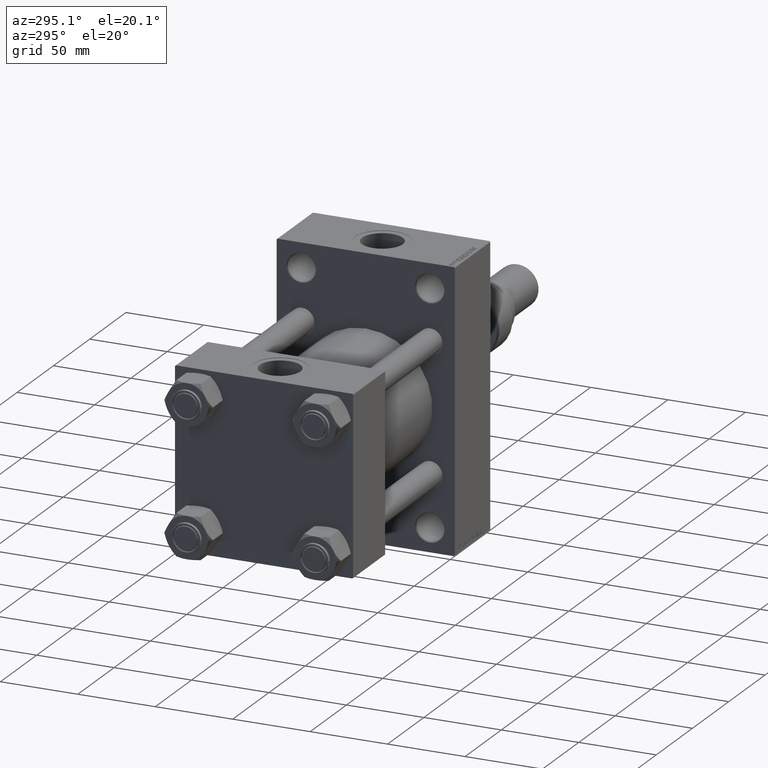
[diagram: clean part render]
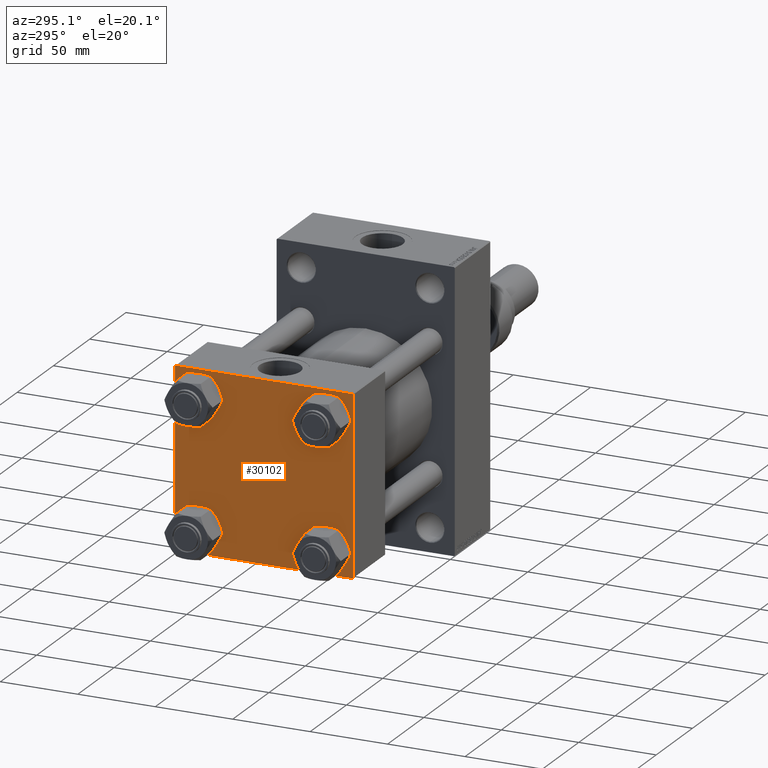
[diagram: same view with one face highlighted and labeled with its STEP entity id]
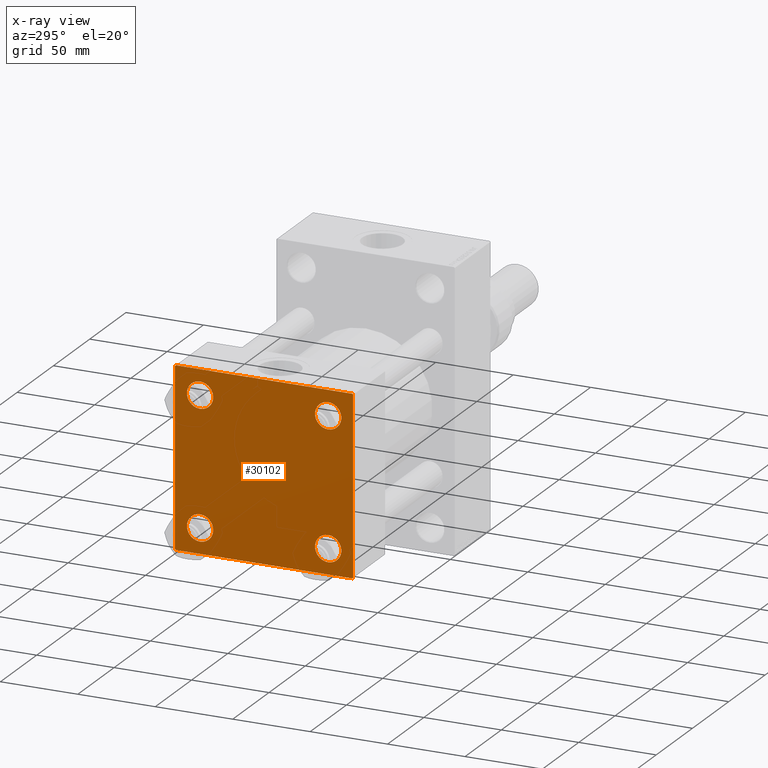
[diagram: x-ray of the same camera — body ghosted, the highlighted face saturated]
A machine part, auxiliary view. The second image highlights one B-rep face of the part: STEP entity #30102.
The next image is the same camera in x-ray: the body ghosted, the highlighted face saturated — about 0% of this face is hidden behind the body in this view.
In plain terms, the highlighted planar face has unit normal (-1, 0, 0).
Its self-contained STEP definition (entity closure, byte-faithful):
#4 = CIRCLE ( 'NONE', #14700, 8.499999999999992895 ) ;
#1008 = ORIENTED_EDGE ( 'NONE', *, *, #20594, .T. ) ;
#1101 = DIRECTION ( 'NONE',  ( 0.000000000000000000, 0.000000000000000000, 1.000000000000000000 ) ) ;
#1162 = VERTEX_POINT ( 'NONE', #33977 ) ;
#1301 = LINE ( 'NONE', #13311, #14352 ) ;
#1791 = DIRECTION ( 'NONE',  ( 1.000000000000000000, -0.000000000000000000, 0.000000000000000000 ) ) ;
#1833 = ORIENTED_EDGE ( 'NONE', *, *, #26661, .T. ) ;
#1867 = VERTEX_POINT ( 'NONE', #28967 ) ;
#2050 = DIRECTION ( 'NONE',  ( 0.000000000000000000, 0.000000000000000000, 1.000000000000000000 ) ) ;
#2169 = DIRECTION ( 'NONE',  ( -0.000000000000000000, 0.7071067811865376918, 0.7071067811865573427 ) ) ;
#2222 = CIRCLE ( 'NONE', #13684, 8.499999999999992895 ) ;
#2226 = VERTEX_POINT ( 'NONE', #2322 ) ;
#2320 = CIRCLE ( 'NONE', #30077, 8.499999999999992895 ) ;
#2322 = CARTESIAN_POINT ( 'NONE',  ( 0.000000000000000000, 57.00000000000000711, 57.50000000000000711 ) ) ;
#2478 = EDGE_CURVE ( 'NONE', #45137, #32740, #28827, .T. ) ;
#2998 = EDGE_CURVE ( 'NONE', #1867, #19682, #9231, .T. ) ;
#3012 = CARTESIAN_POINT ( 'NONE',  ( 0.000000000000000000, -41.34999999999998721, 49.85000000000000853 ) ) ;
#3251 = AXIS2_PLACEMENT_3D ( 'NONE', #35713, #8122, #39802 ) ;
#3537 = DIRECTION ( 'NONE',  ( 0.000000000000000000, 0.000000000000000000, 1.000000000000000000 ) ) ;
#3620 = CARTESIAN_POINT ( 'NONE',  ( 0.000000000000000000, -41.34999999999998721, -49.85000000000000853 ) ) ;
#3791 = CARTESIAN_POINT ( 'NONE',  ( 0.000000000000000000, 41.34999999999999432, -41.35000000000000142 ) ) ;
#5077 = DIRECTION ( 'NONE',  ( 1.000000000000000000, -0.000000000000000000, 0.000000000000000000 ) ) ;
#5788 = CARTESIAN_POINT ( 'NONE',  ( 0.000000000000000000, 57.24999999999922551, 57.25000000000081712 ) ) ;
#6328 = CIRCLE ( 'NONE', #12855, 8.499999999999992895 ) ;
#7039 = CARTESIAN_POINT ( 'NONE',  ( 0.000000000000000000, 41.34999999999999432, -32.85000000000000853 ) ) ;
#7874 = FACE_BOUND ( 'NONE', #26753, .T. ) ;
#8122 = DIRECTION ( 'NONE',  ( -1.000000000000000000, 0.000000000000000000, -0.000000000000000000 ) ) ;
#8162 = DIRECTION ( 'NONE',  ( 1.000000000000000000, -0.000000000000000000, 0.000000000000000000 ) ) ;
#8413 = AXIS2_PLACEMENT_3D ( 'NONE', #32678, #5077, #20418 ) ;
#8866 = VERTEX_POINT ( 'NONE', #40401 ) ;
#8882 = CARTESIAN_POINT ( 'NONE',  ( 0.000000000000000000, 57.49999999999999289, -57.00000000000000711 ) ) ;
#9231 = LINE ( 'NONE', #9492, #33632 ) ;
#9492 = CARTESIAN_POINT ( 'NONE',  ( 0.000000000000000000, -57.50000000000000711, 57.49999999999999289 ) ) ;
#9726 = CARTESIAN_POINT ( 'NONE',  ( 0.000000000000000000, 41.34999999999999432, 49.85000000000000142 ) ) ;
#9745 = DIRECTION ( 'NONE',  ( 0.000000000000000000, 0.000000000000000000, -1.000000000000000000 ) ) ;
#10561 = VERTEX_POINT ( 'NONE', #21813 ) ;
#10624 = ORIENTED_EDGE ( 'NONE', *, *, #18397, .T. ) ;
#10868 = ORIENTED_EDGE ( 'NONE', *, *, #38284, .T. ) ;
#11009 = LINE ( 'NONE', #26613, #33777 ) ;
#11966 = FACE_BOUND ( 'NONE', #21851, .T. ) ;
#12027 = CIRCLE ( 'NONE', #43019, 8.499999999999992895 ) ;
#12048 = AXIS2_PLACEMENT_3D ( 'NONE', #26196, #42276, #49939 ) ;
#12855 = AXIS2_PLACEMENT_3D ( 'NONE', #28461, #44032, #1101 ) ;
#12880 = EDGE_LOOP ( 'NONE', ( #28654, #44954 ) ) ;
#13121 = VERTEX_POINT ( 'NONE', #8882 ) ;
#13311 = CARTESIAN_POINT ( 'NONE',  ( 0.000000000000000000, 57.25000000000081712, -57.24999999999922551 ) ) ;
#13458 = DIRECTION ( 'NONE',  ( 0.000000000000000000, 0.7071067811865573427, -0.7071067811865376918 ) ) ;
#13675 = CARTESIAN_POINT ( 'NONE',  ( -0.000000000000000000, -57.25000000000081712, 57.24999999999922551 ) ) ;
#13684 = AXIS2_PLACEMENT_3D ( 'NONE', #15666, #31268, #26431 ) ;
#14352 = VECTOR ( 'NONE', #28900, 1000.000000000000114 ) ;
#14663 = DIRECTION ( 'NONE',  ( 0.000000000000000000, 0.000000000000000000, 1.000000000000000000 ) ) ;
#14700 = AXIS2_PLACEMENT_3D ( 'NONE', #3791, #22467, #3537 ) ;
#15042 = CIRCLE ( 'NONE', #23201, 8.499999999999992895 ) ;
#15056 = DIRECTION ( 'NONE',  ( 0.000000000000000000, -1.000000000000000000, -1.206764157201257045E-16 ) ) ;
#15666 = CARTESIAN_POINT ( 'NONE',  ( 0.000000000000000000, -41.34999999999998721, -41.35000000000000853 ) ) ;
#15781 = PLANE ( 'NONE',  #3251 ) ;
#17235 = CARTESIAN_POINT ( 'NONE',  ( 0.000000000000000000, 41.34999999999999432, -49.85000000000000142 ) ) ;
#18397 = EDGE_CURVE ( 'NONE', #13121, #10561, #1301, .T. ) ;
#19494 = VERTEX_POINT ( 'NONE', #3012 ) ;
#19682 = VERTEX_POINT ( 'NONE', #47965 ) ;
#20137 = FACE_BOUND ( 'NONE', #36830, .T. ) ;
#20418 = DIRECTION ( 'NONE',  ( 0.000000000000000000, 0.000000000000000000, 1.000000000000000000 ) ) ;
#20594 = EDGE_CURVE ( 'NONE', #8866, #13121, #38596, .T. ) ;
#21199 = EDGE_CURVE ( 'NONE', #31874, #30083, #2222, .T. ) ;
#21238 = EDGE_CURVE ( 'NONE', #19494, #49846, #12027, .T. ) ;
#21813 = CARTESIAN_POINT ( 'NONE',  ( 0.000000000000000000, 57.00000000000002132, -57.49999999999999289 ) ) ;
#21851 = EDGE_LOOP ( 'NONE', ( #43972, #49052 ) ) ;
#22467 = DIRECTION ( 'NONE',  ( 1.000000000000000000, -0.000000000000000000, 0.000000000000000000 ) ) ;
#23201 = AXIS2_PLACEMENT_3D ( 'NONE', #30321, #1791, #2050 ) ;
#23610 = CARTESIAN_POINT ( 'NONE',  ( 0.000000000000000000, -41.34999999999998721, 41.35000000000000853 ) ) ;
#24290 = DIRECTION ( 'NONE',  ( 0.000000000000000000, -0.7071067811865474617, 0.7071067811865474617 ) ) ;
#24313 = VECTOR ( 'NONE', #15056, 1000.000000000000000 ) ;
#24401 = ORIENTED_EDGE ( 'NONE', *, *, #21199, .T. ) ;
#26012 = EDGE_CURVE ( 'NONE', #28204, #50516, #40586, .T. ) ;
#26096 = EDGE_CURVE ( 'NONE', #30083, #31874, #6328, .T. ) ;
#26196 = CARTESIAN_POINT ( 'NONE',  ( 0.000000000000000000, 41.34999999999999432, -41.35000000000000142 ) ) ;
#26431 = DIRECTION ( 'NONE',  ( 0.000000000000000000, 0.000000000000000000, 1.000000000000000000 ) ) ;
#26446 = VECTOR ( 'NONE', #2169, 1000.000000000000114 ) ;
#26613 = CARTESIAN_POINT ( 'NONE',  ( 0.000000000000000000, 57.49999999999999289, 57.50000000000000711 ) ) ;
#26661 = EDGE_CURVE ( 'NONE', #10561, #1162, #50070, .T. ) ;
#26753 = EDGE_LOOP ( 'NONE', ( #33478, #49849 ) ) ;
#27709 = EDGE_CURVE ( 'NONE', #32740, #45137, #2320, .T. ) ;
#27855 = ORIENTED_EDGE ( 'NONE', *, *, #42514, .F. ) ;
#28204 = VERTEX_POINT ( 'NONE', #7039 ) ;
#28461 = CARTESIAN_POINT ( 'NONE',  ( 0.000000000000000000, -41.34999999999998721, -41.35000000000000853 ) ) ;
#28654 = ORIENTED_EDGE ( 'NONE', *, *, #2478, .T. ) ;
#28827 = CIRCLE ( 'NONE', #8413, 8.499999999999992895 ) ;
#28900 = DIRECTION ( 'NONE',  ( -0.000000000000000000, -0.7071067811865376918, -0.7071067811865573427 ) ) ;
#28967 = CARTESIAN_POINT ( 'NONE',  ( 0.000000000000000000, -57.50000000000000711, 57.00000000000000711 ) ) ;
#30077 = AXIS2_PLACEMENT_3D ( 'NONE', #31677, #8162, #47505 ) ;
#30083 = VERTEX_POINT ( 'NONE', #46964 ) ;
#30102 = ADVANCED_FACE ( 'NONE', ( #7874, #20137, #11966, #35454, #43126 ), #15781, .T. ) ;
#30321 = CARTESIAN_POINT ( 'NONE',  ( 0.000000000000000000, -41.34999999999998721, 41.35000000000000853 ) ) ;
#31048 = EDGE_CURVE ( 'NONE', #50516, #28204, #4, .T. ) ;
#31268 = DIRECTION ( 'NONE',  ( 1.000000000000000000, -0.000000000000000000, 0.000000000000000000 ) ) ;
#31560 = CARTESIAN_POINT ( 'NONE',  ( 0.000000000000000000, 41.34999999999999432, 32.85000000000000853 ) ) ;
#31677 = CARTESIAN_POINT ( 'NONE',  ( 0.000000000000000000, 41.34999999999999432, 41.35000000000000142 ) ) ;
#31874 = VERTEX_POINT ( 'NONE', #3620 ) ;
#31898 = VECTOR ( 'NONE', #13458, 1000.000000000000114 ) ;
#31936 = CARTESIAN_POINT ( 'NONE',  ( 0.000000000000000000, -57.00000000000003553, 57.49999999999999289 ) ) ;
#32597 = EDGE_CURVE ( 'NONE', #2226, #8866, #36181, .T. ) ;
#32678 = CARTESIAN_POINT ( 'NONE',  ( 0.000000000000000000, 41.34999999999999432, 41.35000000000000142 ) ) ;
#32740 = VERTEX_POINT ( 'NONE', #31560 ) ;
#33478 = ORIENTED_EDGE ( 'NONE', *, *, #21238, .T. ) ;
#33632 = VECTOR ( 'NONE', #9745, 1000.000000000000000 ) ;
#33777 = VECTOR ( 'NONE', #42683, 1000.000000000000000 ) ;
#33977 = CARTESIAN_POINT ( 'NONE',  ( 0.000000000000000000, -57.00000000000000711, -57.50000000000000711 ) ) ;
#34225 = CARTESIAN_POINT ( 'NONE',  ( 0.000000000000000000, 57.49999999999999289, -57.49999999999999289 ) ) ;
#34263 = DIRECTION ( 'NONE',  ( 0.000000000000000000, 0.000000000000000000, -1.000000000000000000 ) ) ;
#34764 = CARTESIAN_POINT ( 'NONE',  ( 0.000000000000000000, 57.49999999999999289, 57.50000000000000711 ) ) ;
#35454 = FACE_BOUND ( 'NONE', #12880, .T. ) ;
#35668 = EDGE_LOOP ( 'NONE', ( #1008, #10624, #1833, #10868, #43739, #44147, #27855, #45500 ) ) ;
#35713 = CARTESIAN_POINT ( 'NONE',  ( 0.000000000000000000, 0.000000000000000000, 0.000000000000000000 ) ) ;
#36181 = LINE ( 'NONE', #5788, #31898 ) ;
#36500 = CARTESIAN_POINT ( 'NONE',  ( 0.000000000000000000, -41.34999999999998721, 32.85000000000001563 ) ) ;
#36830 = EDGE_LOOP ( 'NONE', ( #46218, #24401 ) ) ;
#38284 = EDGE_CURVE ( 'NONE', #1162, #19682, #50367, .T. ) ;
#38596 = LINE ( 'NONE', #34764, #47070 ) ;
#39178 = DIRECTION ( 'NONE',  ( 1.000000000000000000, -0.000000000000000000, 0.000000000000000000 ) ) ;
#39802 = DIRECTION ( 'NONE',  ( -0.000000000000000000, 0.000000000000000000, 1.000000000000000000 ) ) ;
#40401 = CARTESIAN_POINT ( 'NONE',  ( 0.000000000000000000, 57.49999999999999289, 57.00000000000003553 ) ) ;
#40586 = CIRCLE ( 'NONE', #12048, 8.499999999999992895 ) ;
#40880 = CARTESIAN_POINT ( 'NONE',  ( 0.000000000000000000, -57.25000000000000711, -57.25000000000000711 ) ) ;
#42276 = DIRECTION ( 'NONE',  ( 1.000000000000000000, -0.000000000000000000, 0.000000000000000000 ) ) ;
#42514 = EDGE_CURVE ( 'NONE', #2226, #47081, #11009, .T. ) ;
#42683 = DIRECTION ( 'NONE',  ( 0.000000000000000000, -1.000000000000000000, -1.206764157201257045E-16 ) ) ;
#42695 = EDGE_CURVE ( 'NONE', #1867, #47081, #48683, .T. ) ;
#43019 = AXIS2_PLACEMENT_3D ( 'NONE', #23610, #39178, #14663 ) ;
#43126 = FACE_OUTER_BOUND ( 'NONE', #35668, .T. ) ;
#43739 = ORIENTED_EDGE ( 'NONE', *, *, #2998, .F. ) ;
#43972 = ORIENTED_EDGE ( 'NONE', *, *, #26012, .T. ) ;
#44032 = DIRECTION ( 'NONE',  ( 1.000000000000000000, -0.000000000000000000, 0.000000000000000000 ) ) ;
#44147 = ORIENTED_EDGE ( 'NONE', *, *, #42695, .T. ) ;
#44291 = EDGE_CURVE ( 'NONE', #49846, #19494, #15042, .T. ) ;
#44954 = ORIENTED_EDGE ( 'NONE', *, *, #27709, .T. ) ;
#45137 = VERTEX_POINT ( 'NONE', #9726 ) ;
#45500 = ORIENTED_EDGE ( 'NONE', *, *, #32597, .T. ) ;
#46218 = ORIENTED_EDGE ( 'NONE', *, *, #26096, .T. ) ;
#46964 = CARTESIAN_POINT ( 'NONE',  ( 0.000000000000000000, -41.34999999999998721, -32.85000000000001563 ) ) ;
#47070 = VECTOR ( 'NONE', #34263, 1000.000000000000000 ) ;
#47081 = VERTEX_POINT ( 'NONE', #31936 ) ;
#47457 = VECTOR ( 'NONE', #24290, 1000.000000000000114 ) ;
#47505 = DIRECTION ( 'NONE',  ( 0.000000000000000000, 0.000000000000000000, 1.000000000000000000 ) ) ;
#47965 = CARTESIAN_POINT ( 'NONE',  ( 0.000000000000000000, -57.50000000000000711, -57.00000000000000711 ) ) ;
#48683 = LINE ( 'NONE', #13675, #26446 ) ;
#49052 = ORIENTED_EDGE ( 'NONE', *, *, #31048, .T. ) ;
#49846 = VERTEX_POINT ( 'NONE', #36500 ) ;
#49849 = ORIENTED_EDGE ( 'NONE', *, *, #44291, .T. ) ;
#49939 = DIRECTION ( 'NONE',  ( 0.000000000000000000, 0.000000000000000000, 1.000000000000000000 ) ) ;
#50070 = LINE ( 'NONE', #34225, #24313 ) ;
#50367 = LINE ( 'NONE', #40880, #47457 ) ;
#50516 = VERTEX_POINT ( 'NONE', #17235 ) ;